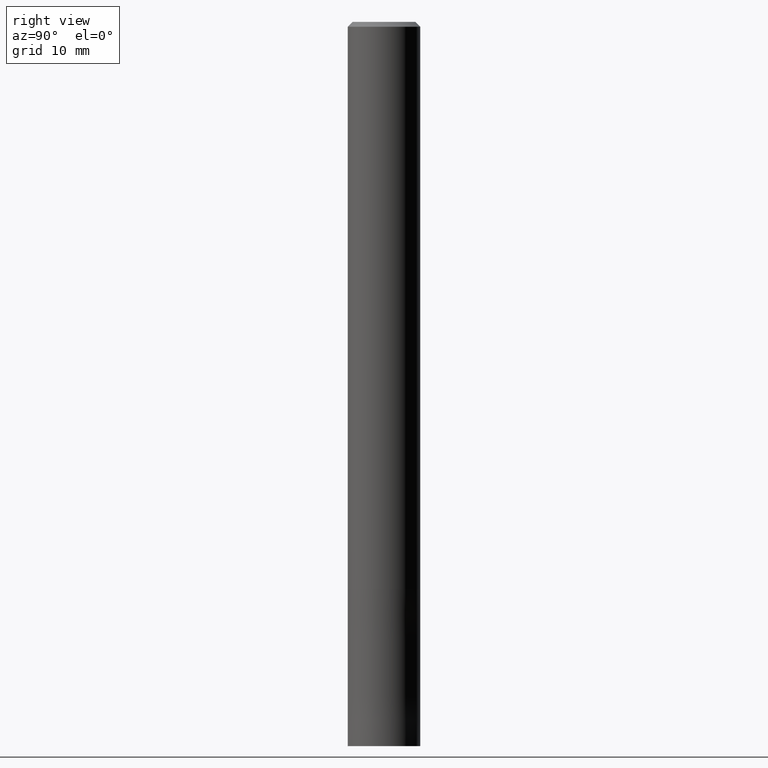
[diagram: clean part render]
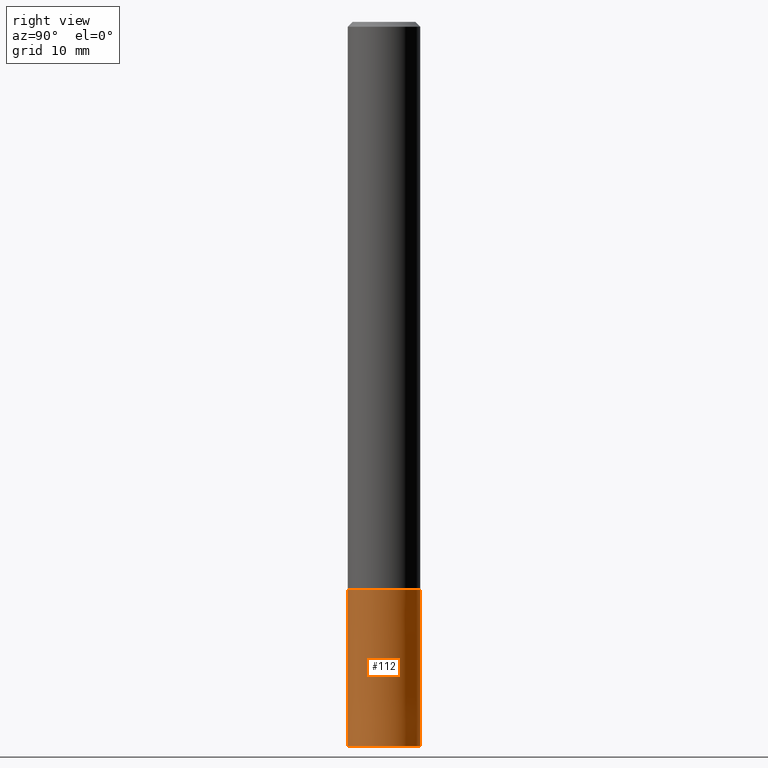
[diagram: same view with one face highlighted and labeled with its STEP entity id]
A machine part, right view. The second image highlights one B-rep face of the part: STEP entity #112.
In plain terms, the highlighted conical surface has half-angle 0 deg.
Its self-contained STEP definition (entity closure, byte-faithful):
#66=EDGE_CURVE('',#78,#108,#154,.T.);
#78=VERTEX_POINT('',#168);
#84=EDGE_CURVE('',#78,#98,#174,.T.);
#88=EDGE_CURVE('',#92,#108,#179,.T.);
#92=VERTEX_POINT('',#183);
#98=VERTEX_POINT('',#191);
#108=VERTEX_POINT('',#201);
#112=ADVANCED_FACE('',(#205),#206,.T.);
#120=EDGE_CURVE('',#98,#92,#214,.T.);
#154=CIRCLE('',#245,2.9999);
#168=CARTESIAN_POINT('',(0.0,2.9999,-47.0));
#174=LINE('',#269,#270);
#179=LINE('',#276,#277);
#183=CARTESIAN_POINT('',(3.67381906146713E-016,-3.0,-60.0));
#191=CARTESIAN_POINT('',(0.0,3.0,-60.0));
#201=CARTESIAN_POINT('',(3.67369660083175E-016,-2.9999,-47.0));
#205=FACE_OUTER_BOUND('',#309,.T.);
#206=CONICAL_SURFACE('',#310,2.99995,7.6923076921722E-006);
#214=CIRCLE('',#322,3.0);
#245=AXIS2_PLACEMENT_3D('',#345,#346,#347);
#269=CARTESIAN_POINT('',(-3.67375783114944E-016,2.99995,-53.5));
#270=VECTOR('',#371,1.0);
#276=CARTESIAN_POINT('',(3.67375783114944E-016,-2.99995,-53.5));
#277=VECTOR('',#380,1.0);
#309=EDGE_LOOP('',(#403,#404,#405,#406));
#310=AXIS2_PLACEMENT_3D('',#407,#408,#409);
#322=AXIS2_PLACEMENT_3D('',#414,#415,#416);
#345=CARTESIAN_POINT('',(0.0,0.0,-47.0));
#346=DIRECTION('',(0.0,0.0,-1.0));
#347=DIRECTION('',(0.0,1.0,0.0));
#371=DIRECTION('',(-9.42004887529793E-022,7.69230769209634E-006,-0.999999999970414));
#380=DIRECTION('',(-9.42004887529793E-022,7.69230769209634E-006,0.999999999970414));
#403=ORIENTED_EDGE('',*,*,#84,.F.);
#404=ORIENTED_EDGE('',*,*,#66,.T.);
#405=ORIENTED_EDGE('',*,*,#88,.F.);
#406=ORIENTED_EDGE('',*,*,#120,.F.);
#407=CARTESIAN_POINT('',(0.0,0.0,-53.5));
#408=DIRECTION('',(0.0,-0.0,-1.0));
#409=DIRECTION('',(0.0,1.0,0.0));
#414=CARTESIAN_POINT('',(0.0,0.0,-60.0));
#415=DIRECTION('',(0.0,0.0,-1.0));
#416=DIRECTION('',(0.0,1.0,0.0));